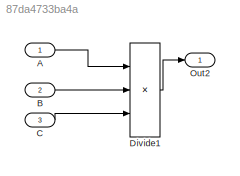
MODEL slx_87da4733ba4a
KIND model
CONFIG AbsTol = auto
CONFIG EnableMultiTasking = on
CONFIG FixedStep = 0.200000
CONFIG MaxStep = .2
CONFIG MinStep = auto
CONFIG RelTol = 1e-3
CONFIG SampleTimeConstraint = Unconstrained
CONFIG Solver = FixedStepDiscrete
CONFIG SolverName = FixedStepDiscrete
CONFIG StartTime = 0.0
CONFIG StopTime = 19.8
WORKSPACE source: MAT-file member
WORKSPACE Var = 0
BLOCK [Inport] A
  IconDisplay = Port number
  OutDataTypeStr = double
  PortDimensions = [2 2]
BLOCK [Inport] B
  IconDisplay = Port number
  OutDataTypeStr = double
  Port = 2
  PortDimensions = [2 2]
BLOCK [Inport] C
  IconDisplay = Port number
  OutDataTypeStr = double
  Port = 3
  PortDimensions = [2 2]
BLOCK [Product] Divide1
  InputSameDT = off
  Inputs = */*
  Multiplication = Matrix(*)
  OutDataTypeStr = Inherit: Inherit via internal rule
  Ports = [3, 1]
  RndMeth = Floor
  SaturateOnIntegerOverflow = off
BLOCK [Outport] Out2
  IconDisplay = Port number
LINE A:1 -> Divide1:1
LINE B:1 -> Divide1:2
LINE C:1 -> Divide1:3
LINE Divide1:1 -> Out2:1
